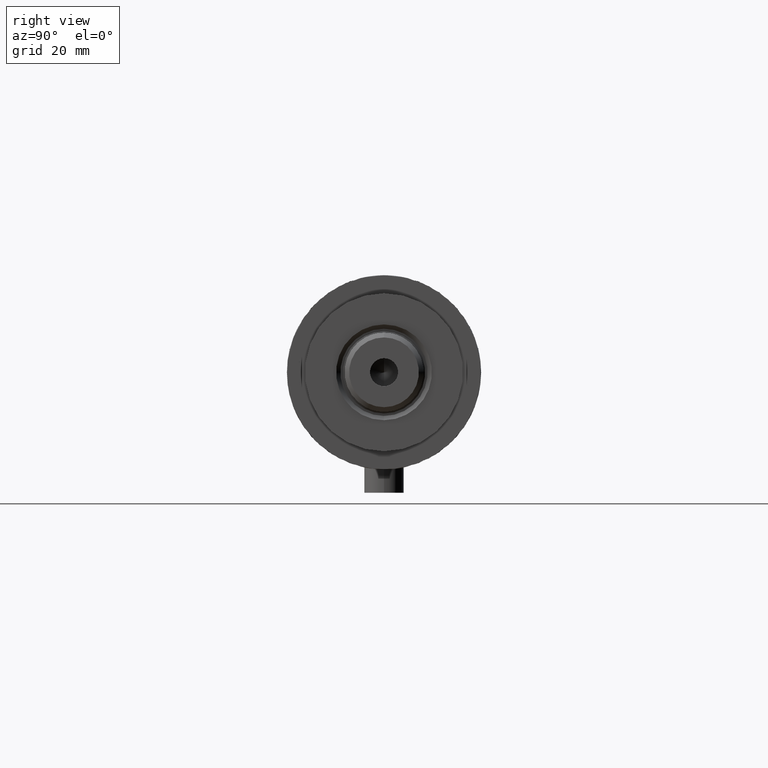
[diagram: clean part render]
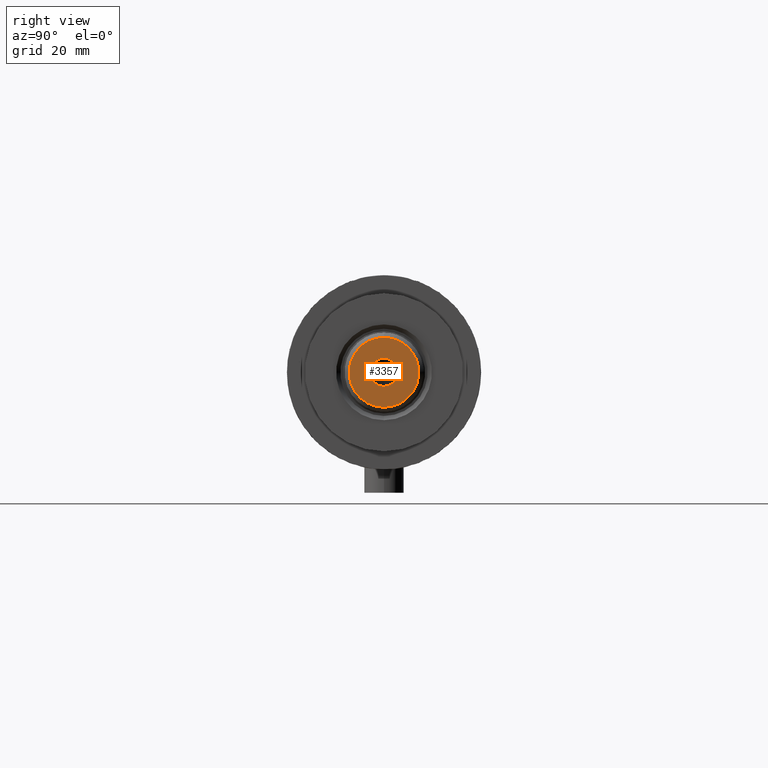
[diagram: same view with one face highlighted and labeled with its STEP entity id]
A machine part, right view. The second image highlights one B-rep face of the part: STEP entity #3357.
In plain terms, the highlighted planar face has unit normal (1, 0, -0).
Its self-contained STEP definition (entity closure, byte-faithful):
#23 = DIRECTION ( 'NONE',  ( 1.000000000000000000, 0.000000000000000000, 0.000000000000000000 ) ) ;
#187 = EDGE_CURVE ( 'NONE', #2913, #4638, #3268, .T. ) ;
#335 = CARTESIAN_POINT ( 'NONE',  ( 0.000000000000000000, 0.000000000000000000, 165.3000000000000114 ) ) ;
#382 = DIRECTION ( 'NONE',  ( 1.000000000000000000, 0.000000000000000000, 0.000000000000000000 ) ) ;
#434 = VERTEX_POINT ( 'NONE', #4561 ) ;
#700 = FACE_BOUND ( 'NONE', #2438, .T. ) ;
#1201 = CARTESIAN_POINT ( 'NONE',  ( 4.249999999999997335, 0.000000000000000000, 165.3000000000000114 ) ) ;
#1225 = EDGE_LOOP ( 'NONE', ( #2445, #2776 ) ) ;
#1375 = EDGE_CURVE ( 'NONE', #4638, #2913, #4506, .T. ) ;
#1851 = CARTESIAN_POINT ( 'NONE',  ( 0.000000000000000000, 0.000000000000000000, 165.3000000000000114 ) ) ;
#1995 = ORIENTED_EDGE ( 'NONE', *, *, #2157, .F. ) ;
#2053 = CIRCLE ( 'NONE', #4267, 4.249999999999997335 ) ;
#2157 = EDGE_CURVE ( 'NONE', #3152, #434, #2209, .T. ) ;
#2161 = DIRECTION ( 'NONE',  ( 1.000000000000000000, 0.000000000000000000, 0.000000000000000000 ) ) ;
#2209 = CIRCLE ( 'NONE', #4045, 4.249999999999997335 ) ;
#2423 = CARTESIAN_POINT ( 'NONE',  ( 10.60000000000001208, 1.383850883036510053E-15, 165.3000000000000114 ) ) ;
#2438 = EDGE_LOOP ( 'NONE', ( #1995, #3245 ) ) ;
#2445 = ORIENTED_EDGE ( 'NONE', *, *, #1375, .T. ) ;
#2487 = DIRECTION ( 'NONE',  ( 1.000000000000000000, 0.000000000000000000, -0.000000000000000000 ) ) ;
#2516 = PLANE ( 'NONE',  #4324 ) ;
#2585 = DIRECTION ( 'NONE',  ( 1.000000000000000000, 0.000000000000000000, 0.000000000000000000 ) ) ;
#2588 = AXIS2_PLACEMENT_3D ( 'NONE', #1851, #4003, #23 ) ;
#2597 = EDGE_CURVE ( 'NONE', #434, #3152, #2053, .T. ) ;
#2776 = ORIENTED_EDGE ( 'NONE', *, *, #187, .T. ) ;
#2913 = VERTEX_POINT ( 'NONE', #2423 ) ;
#2914 = DIRECTION ( 'NONE',  ( -0.000000000000000000, -0.000000000000000000, 1.000000000000000000 ) ) ;
#2917 = DIRECTION ( 'NONE',  ( 0.000000000000000000, 0.000000000000000000, 1.000000000000000000 ) ) ;
#3028 = AXIS2_PLACEMENT_3D ( 'NONE', #4380, #3913, #2161 ) ;
#3152 = VERTEX_POINT ( 'NONE', #1201 ) ;
#3245 = ORIENTED_EDGE ( 'NONE', *, *, #2597, .F. ) ;
#3268 = CIRCLE ( 'NONE', #3028, 10.60000000000001208 ) ;
#3357 = ADVANCED_FACE ( 'NONE', ( #4686, #700 ), #2516, .T. ) ;
#3558 = CARTESIAN_POINT ( 'NONE',  ( -10.60000000000001208, 0.000000000000000000, 165.3000000000000114 ) ) ;
#3669 = CARTESIAN_POINT ( 'NONE',  ( 0.000000000000000000, 0.000000000000000000, 165.3000000000000114 ) ) ;
#3913 = DIRECTION ( 'NONE',  ( 0.000000000000000000, 0.000000000000000000, 1.000000000000000000 ) ) ;
#3980 = CARTESIAN_POINT ( 'NONE',  ( 0.000000000000000000, 0.000000000000000000, 165.3000000000000114 ) ) ;
#3993 = DIRECTION ( 'NONE',  ( -0.000000000000000000, -0.000000000000000000, 1.000000000000000000 ) ) ;
#4003 = DIRECTION ( 'NONE',  ( 0.000000000000000000, 0.000000000000000000, 1.000000000000000000 ) ) ;
#4045 = AXIS2_PLACEMENT_3D ( 'NONE', #335, #2914, #2585 ) ;
#4267 = AXIS2_PLACEMENT_3D ( 'NONE', #3669, #3993, #382 ) ;
#4324 = AXIS2_PLACEMENT_3D ( 'NONE', #3980, #2917, #2487 ) ;
#4380 = CARTESIAN_POINT ( 'NONE',  ( 0.000000000000000000, 0.000000000000000000, 165.3000000000000114 ) ) ;
#4506 = CIRCLE ( 'NONE', #2588, 10.60000000000001208 ) ;
#4561 = CARTESIAN_POINT ( 'NONE',  ( -4.249999999999997335, 5.204748896376248727E-16, 165.3000000000000114 ) ) ;
#4638 = VERTEX_POINT ( 'NONE', #3558 ) ;
#4686 = FACE_OUTER_BOUND ( 'NONE', #1225, .T. ) ;